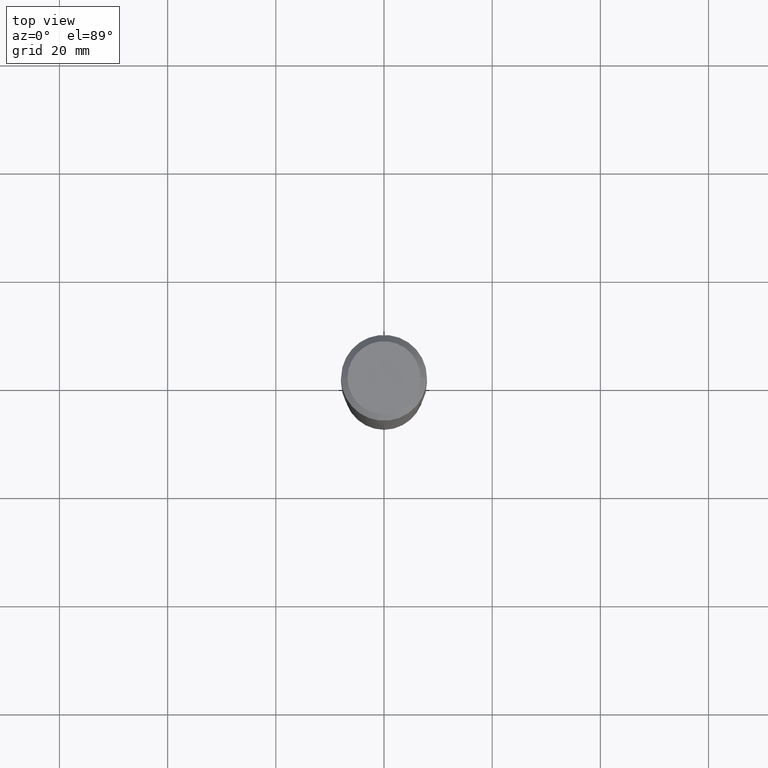
[diagram: clean part render]
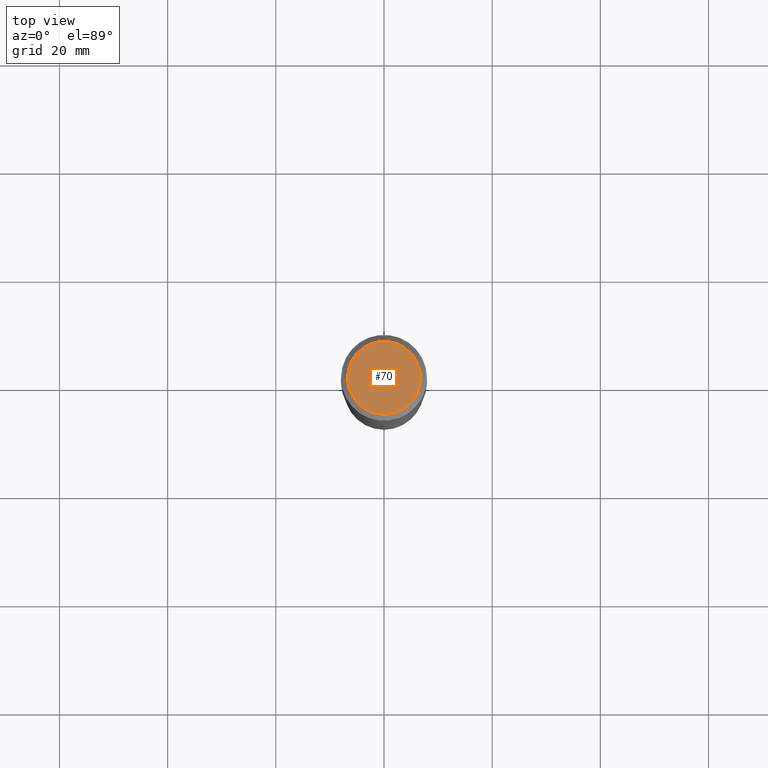
[diagram: same view with one face highlighted and labeled with its STEP entity id]
A machine part, top view. The second image highlights one B-rep face of the part: STEP entity #70.
In plain terms, the highlighted planar face has unit normal (0, -0, -1).
Its self-contained STEP definition (entity closure, byte-faithful):
#8 = DIRECTION ( 'NONE',  ( -2.445468806185136597E-29, 3.491481338843145583E-15, 1.000000000000000000 ) ) ;
#12 = CARTESIAN_POINT ( 'NONE',  ( -7.955031918821650812E-47, 1.135767727816383927E-32, 3.252968060235157842E-18 ) ) ;
#23 = EDGE_CURVE ( 'NONE', #230, #72, #487, .T. ) ;
#30 = ORIENTED_EDGE ( 'NONE', *, *, #403, .T. ) ;
#70 = ADVANCED_FACE ( 'NONE', ( #386 ), #458, .F. ) ;
#72 = VERTEX_POINT ( 'NONE', #146 ) ;
#120 = CARTESIAN_POINT ( 'NONE',  ( -1.591006383764330162E-46, 2.271535455632767854E-32, 6.505936120470315685E-18 ) ) ;
#146 = CARTESIAN_POINT ( 'NONE',  ( -0.2656250000000000000, 1.936681055139549843E-15, 6.505936120457058354E-18 ) ) ;
#160 = CARTESIAN_POINT ( 'NONE',  ( -1.591006383764330162E-46, 2.271535455632767854E-32, 6.505936120470315685E-18 ) ) ;
#197 = DIRECTION ( 'NONE',  ( -1.000000000000000000, 6.982962677686265922E-15, -4.876176775795935793E-29 ) ) ;
#230 = VERTEX_POINT ( 'NONE', #416 ) ;
#240 = DIRECTION ( 'NONE',  ( -2.445468806185136597E-29, 3.491481338843145583E-15, 1.000000000000000000 ) ) ;
#255 = DIRECTION ( 'NONE',  ( 1.000000000000000000, -6.982962677686268288E-15, 4.876286914311434227E-29 ) ) ;
#257 = AXIS2_PLACEMENT_3D ( 'NONE', #160, #240, #388 ) ;
#301 = EDGE_LOOP ( 'NONE', ( #30, #331 ) ) ;
#331 = ORIENTED_EDGE ( 'NONE', *, *, #23, .T. ) ;
#350 = CIRCLE ( 'NONE', #257, 0.2656250000000000000 ) ;
#354 = AXIS2_PLACEMENT_3D ( 'NONE', #12, #380, #197 ) ;
#380 = DIRECTION ( 'NONE',  ( 2.438088387897960049E-29, -3.491481338843145188E-15, -1.000000000000000000 ) ) ;
#386 = FACE_OUTER_BOUND ( 'NONE', #301, .T. ) ;
#388 = DIRECTION ( 'NONE',  ( 1.000000000000000000, -6.982962677686268288E-15, 4.876286914311434227E-29 ) ) ;
#403 = EDGE_CURVE ( 'NONE', #72, #230, #350, .T. ) ;
#416 = CARTESIAN_POINT ( 'NONE',  ( 0.2656250000000000000, -2.064944296359970168E-15, 6.505936120484021373E-18 ) ) ;
#442 = AXIS2_PLACEMENT_3D ( 'NONE', #120, #8, #255 ) ;
#458 = PLANE ( 'NONE',  #354 ) ;
#487 = CIRCLE ( 'NONE', #442, 0.2656250000000000000 ) ;